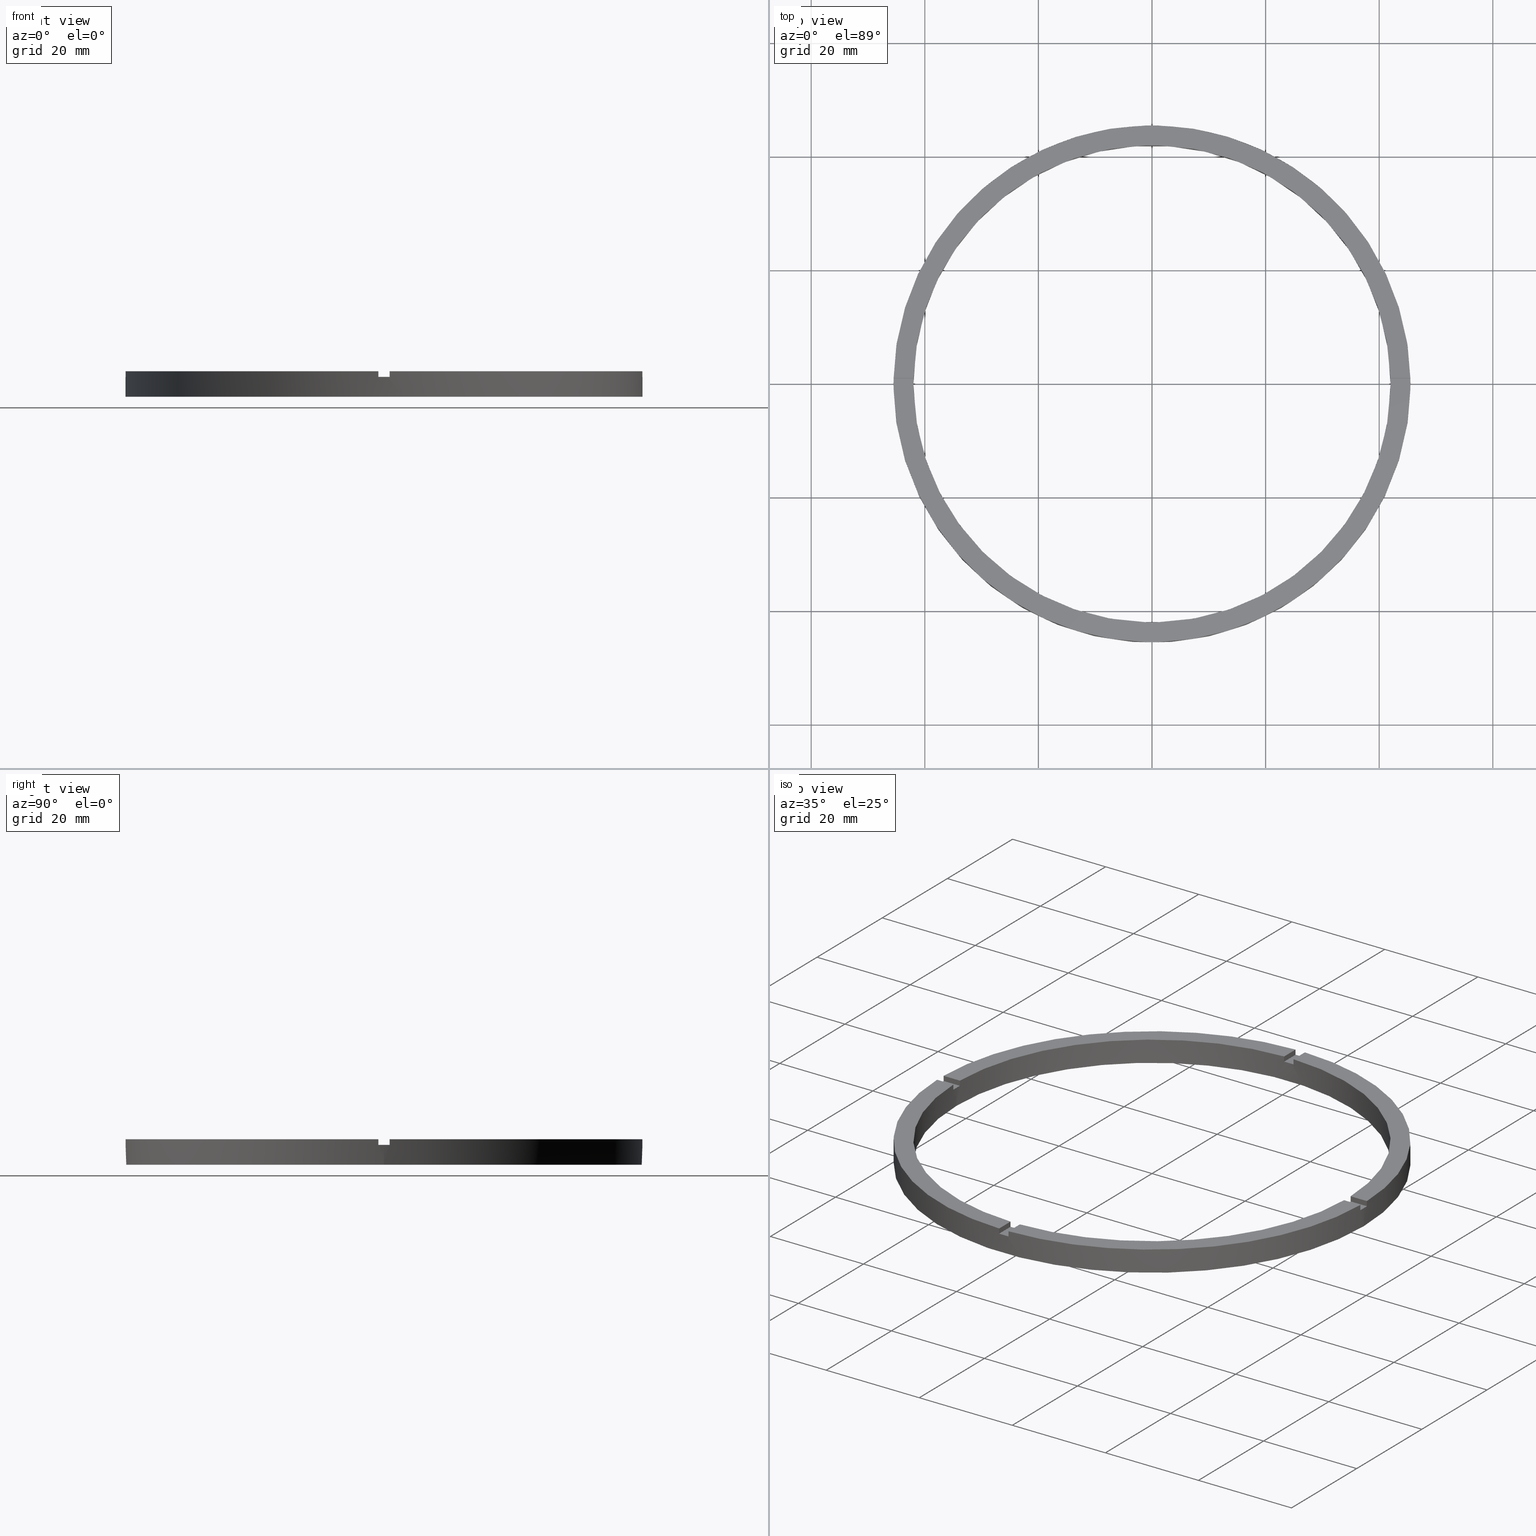
[diagram: canonical four-view strip — front | top / right | iso, engineering-drawing reading convention]
A machine part, canonical four-view strip (front | top / right | iso — engineering-drawing reading convention). The complete STEP part file that produces these views, byte-faithful:
ISO-10303-21;
HEADER;
FILE_DESCRIPTION (( 'STEP AP203' ),
    '1' );
FILE_NAME ('514186.step',
    '2024-12-26T02:45:58',
    ( 'MSI' ),
    ( '' ),
    'SwSTEP 2.0',
    'SolidWorks 2020',
    '' );
FILE_SCHEMA (( 'CONFIG_CONTROL_DESIGN' ));
ENDSEC;

DATA;
#1 = CYLINDRICAL_SURFACE ( 'NONE', #613, 45.50000000000000000 ) ;
#2 = LINE ( 'NONE', #631, #255 ) ;
#3 = LINE ( 'NONE', #134, #529 ) ;
#4 = LINE ( 'NONE', #275, #259 ) ;
#5 = DIRECTION ( 'NONE',  ( -0.000000000000000000, -0.000000000000000000, -1.000000000000000000 ) ) ;
#6 = CARTESIAN_POINT ( 'NONE',  ( 0.000000000000000000, 0.000000000000000000, 3.499999999999999556 ) ) ;
#7 = CIRCLE ( 'NONE', #587, 42.00000000000000000 ) ;
#8 = VECTOR ( 'NONE', #783, 1000.000000000000000 ) ;
#9 = DATE_AND_TIME ( #17, #31 ) ;
#10 = APPLICATION_CONTEXT ( 'configuration controlled 3d designs of mechanical parts and assemblies' ) ;
#11 = CALENDAR_DATE ( 2024, 26, 12 ) ;
#12 = DATE_AND_TIME ( #280, #277 ) ;
#13 = CC_DESIGN_APPROVAL ( #470, ( #728 ) ) ;
#14 = CARTESIAN_POINT ( 'NONE',  ( 0.9999999999999737987, 41.98809355043403713, 4.500000000000000000 ) ) ;
#15 = DIRECTION ( 'NONE',  ( 0.000000000000000000, 0.000000000000000000, 1.000000000000000000 ) ) ;
#16 = AXIS2_PLACEMENT_3D ( 'NONE', #625, #29, #82 ) ;
#17 = CALENDAR_DATE ( 2024, 26, 12 ) ;
#18 = PERSON_AND_ORGANIZATION ( #532, #561 ) ;
#19 = AXIS2_PLACEMENT_3D ( 'NONE', #21, #73, #758 ) ;
#20 = DIRECTION ( 'NONE',  ( -0.000000000000000000, -0.000000000000000000, -1.000000000000000000 ) ) ;
#21 = CARTESIAN_POINT ( 'NONE',  ( 0.000000000000000000, 0.000000000000000000, 3.499999999999999556 ) ) ;
#22 = CARTESIAN_POINT ( 'NONE',  ( 41.98809355043403713, 0.9999999999998436806, 4.500000000000000000 ) ) ;
#23 = EDGE_CURVE ( 'NONE', #650, #669, #362, .T. ) ;
#24 = CARTESIAN_POINT ( 'NONE',  ( 0.000000000000000000, 0.000000000000000000, 4.500000000000000000 ) ) ;
#25 = APPROVAL_PERSON_ORGANIZATION ( #544, #132, #204 ) ;
#26 = COORDINATED_UNIVERSAL_TIME_OFFSET ( 8, 0, .AHEAD. ) ;
#27 = ADVANCED_FACE ( 'NONE', ( #358 ), #107, .T. ) ;
#28 = AXIS2_PLACEMENT_3D ( 'NONE', #336, #99, #93 ) ;
#29 = DIRECTION ( 'NONE',  ( 0.000000000000000000, 0.000000000000000000, 1.000000000000000000 ) ) ;
#30 = DIRECTION ( 'NONE',  ( 1.000000000000000000, 0.000000000000000000, -0.000000000000000000 ) ) ;
#31 = LOCAL_TIME ( 10, 45, 58.00000000000000000, #26 ) ;
#32 = DIRECTION ( 'NONE',  ( -1.000000000000000000, -6.505213034913025371E-17, -0.000000000000000000 ) ) ;
#33 = EDGE_CURVE ( 'NONE', #454, #180, #85, .T. ) ;
#34 = LOCAL_TIME ( 10, 45, 58.00000000000000000, #556 ) ;
#35 = ADVANCED_FACE ( 'NONE', ( #641 ), #302, .T. ) ;
#36 = EDGE_CURVE ( 'NONE', #118, #180, #359, .T. ) ;
#37 = PERSON_AND_ORGANIZATION ( #532, #561 ) ;
#38 = APPROVAL_DATE_TIME ( #289, #412 ) ;
#39 = DATE_TIME_ROLE ( 'creation_date' ) ;
#40 = PERSON_AND_ORGANIZATION ( #532, #561 ) ;
#41 = PERSON_AND_ORGANIZATION ( #532, #561 ) ;
#42 = CARTESIAN_POINT ( 'NONE',  ( -45.48900966167541782, -1.000000000000029976, 4.500000000000000000 ) ) ;
#43 = CALENDAR_DATE ( 2024, 26, 12 ) ;
#44 = DIRECTION ( 'NONE',  ( -0.000000000000000000, -0.000000000000000000, -1.000000000000000000 ) ) ;
#45 = SECURITY_CLASSIFICATION ( '', '', #91 ) ;
#46 = DATE_AND_TIME ( #570, #292 ) ;
#47 = DIRECTION ( 'NONE',  ( 1.000000000000000000, 6.505213034913025371E-17, 0.000000000000000000 ) ) ;
#48 = EDGE_CURVE ( 'NONE', #200, #650, #355, .T. ) ;
#49 = PRODUCT_DEFINITION_SHAPE ( 'NONE', 'NONE',  #728 ) ;
#50 = AXIS2_PLACEMENT_3D ( 'NONE', #564, #500, #615 ) ;
#51 = CARTESIAN_POINT ( 'NONE',  ( 0.9999999999999737987, 45.48900966167541782, 4.500000000000000000 ) ) ;
#52 = CARTESIAN_POINT ( 'NONE',  ( 35.49999999999999289, 0.9999999999998432365, 3.499999999999999556 ) ) ;
#53 = CARTESIAN_POINT ( 'NONE',  ( 45.48900966167542492, 0.9999999999998439026, 4.500000000000000000 ) ) ;
#54 = DIRECTION ( 'NONE',  ( 0.000000000000000000, 0.000000000000000000, 1.000000000000000000 ) ) ;
#55 =( GEOMETRIC_REPRESENTATION_CONTEXT ( 3 ) GLOBAL_UNCERTAINTY_ASSIGNED_CONTEXT ( ( #368 ) ) GLOBAL_UNIT_ASSIGNED_CONTEXT ( ( #194, #550, #554 ) ) REPRESENTATION_CONTEXT ( 'NONE', 'WORKASPACE' ) );
#56 = CARTESIAN_POINT ( 'NONE',  ( 0.000000000000000000, 0.000000000000000000, 3.499999999999999556 ) ) ;
#57 = LINE ( 'NONE', #403, #301 ) ;
#58 = LINE ( 'NONE', #67, #580 ) ;
#59 = AXIS2_PLACEMENT_3D ( 'NONE', #6, #162, #551 ) ;
#60 = AXIS2_PLACEMENT_3D ( 'NONE', #572, #130, #618 ) ;
#61 = DIRECTION ( 'NONE',  ( 0.000000000000000000, 0.000000000000000000, 1.000000000000000000 ) ) ;
#62 = EDGE_CURVE ( 'NONE', #398, #208, #634, .T. ) ;
#63 = CARTESIAN_POINT ( 'NONE',  ( 0.000000000000000000, 0.000000000000000000, 4.500000000000000000 ) ) ;
#64 = DIRECTION ( 'NONE',  ( 1.000000000000000000, 0.000000000000000000, 0.000000000000000000 ) ) ;
#65 = ORIENTED_EDGE ( 'NONE', *, *, #586, .F. ) ;
#66 = VERTEX_POINT ( 'NONE', #253 ) ;
#67 = CARTESIAN_POINT ( 'NONE',  ( 35.49999999999999289, -1.000000000000156763, 3.499999999999999556 ) ) ;
#68 = ORIENTED_EDGE ( 'NONE', *, *, #747, .F. ) ;
#69 = AXIS2_PLACEMENT_3D ( 'NONE', #606, #662, #735 ) ;
#70 = DIRECTION ( 'NONE',  ( -1.000000000000000000, -2.168404344971008621E-16, 0.000000000000000000 ) ) ;
#71 = CARTESIAN_POINT ( 'NONE',  ( 0.000000000000000000, 0.000000000000000000, 4.500000000000000000 ) ) ;
#72 = EDGE_CURVE ( 'NONE', #453, #444, #346, .T. ) ;
#73 = DIRECTION ( 'NONE',  ( 0.000000000000000000, -0.000000000000000000, 1.000000000000000000 ) ) ;
#74 = ORIENTED_EDGE ( 'NONE', *, *, #541, .T. ) ;
#75 = EDGE_CURVE ( 'NONE', #438, #170, #617, .T. ) ;
#76 = PLANE ( 'NONE',  #771 ) ;
#77 = DIRECTION ( 'NONE',  ( -1.000000000000000000, -2.168404344971008621E-16, 0.000000000000000000 ) ) ;
#78 = CARTESIAN_POINT ( 'NONE',  ( -45.50000000000000000, 0.000000000000000000, 0.000000000000000000 ) ) ;
#79 = CC_DESIGN_APPROVAL ( #132, ( #101 ) ) ;
#80 = ORIENTED_EDGE ( 'NONE', *, *, #762, .T. ) ;
#81 = DIRECTION ( 'NONE',  ( 1.000000000000000000, -0.000000000000000000, 0.000000000000000000 ) ) ;
#82 = DIRECTION ( 'NONE',  ( 1.000000000000000000, 0.000000000000000000, 0.000000000000000000 ) ) ;
#83 = CARTESIAN_POINT ( 'NONE',  ( -42.00000000000000000, 0.000000000000000000, 4.500000000000000000 ) ) ;
#84 = VERTEX_POINT ( 'NONE', #574 ) ;
#85 = LINE ( 'NONE', #569, #104 ) ;
#86 = AXIS2_PLACEMENT_3D ( 'NONE', #24, #508, #671 ) ;
#87 = DATE_TIME_ROLE ( 'classification_date' ) ;
#88 = EDGE_CURVE ( 'NONE', #365, #453, #619, .T. ) ;
#89 = VECTOR ( 'NONE', #425, 1000.000000000000000 ) ;
#90 = DIRECTION ( 'NONE',  ( 0.000000000000000000, 0.000000000000000000, 1.000000000000000000 ) ) ;
#91 = SECURITY_CLASSIFICATION_LEVEL ( 'unclassified' ) ;
#92 = ORIENTED_EDGE ( 'NONE', *, *, #640, .T. ) ;
#93 = DIRECTION ( 'NONE',  ( 1.000000000000000000, 0.000000000000000000, 0.000000000000000000 ) ) ;
#94 = ADVANCED_FACE ( 'NONE', ( #354 ), #266, .T. ) ;
#95 = DIRECTION ( 'NONE',  ( 1.000000000000000000, 6.505213034913025371E-17, 0.000000000000000000 ) ) ;
#96 = EDGE_CURVE ( 'NONE', #197, #200, #630, .T. ) ;
#97 = EDGE_CURVE ( 'NONE', #696, #180, #102, .T. ) ;
#98 = CARTESIAN_POINT ( 'NONE',  ( 0.000000000000000000, 0.000000000000000000, 3.499999999999999556 ) ) ;
#99 = DIRECTION ( 'NONE',  ( 0.000000000000000000, 0.000000000000000000, 1.000000000000000000 ) ) ;
#100 = DIRECTION ( 'NONE',  ( 1.000000000000000000, 0.000000000000000000, 0.000000000000000000 ) ) ;
#101 = PRODUCT_DEFINITION_FORMATION_WITH_SPECIFIED_SOURCE ( '�κ�', '', #295, .NOT_KNOWN. ) ;
#102 = LINE ( 'NONE', #600, #356 ) ;
#103 = EDGE_CURVE ( 'NONE', #739, #595, #638, .T. ) ;
#104 = VECTOR ( 'NONE', #247, 1000.000000000000000 ) ;
#105 = AXIS2_PLACEMENT_3D ( 'NONE', #192, #287, #226 ) ;
#106 = CARTESIAN_POINT ( 'NONE',  ( 0.9999999999998409050, -35.50000000000017764, 3.499999999999999556 ) ) ;
#107 = PLANE ( 'NONE',  #596 ) ;
#108 = LINE ( 'NONE', #592, #258 ) ;
#109 = DIRECTION ( 'NONE',  ( 2.168404344971008621E-16, -1.000000000000000000, 0.000000000000000000 ) ) ;
#110 = ORIENTED_EDGE ( 'NONE', *, *, #23, .F. ) ;
#111 = ORIENTED_EDGE ( 'NONE', *, *, #36, .T. ) ;
#112 = AXIS2_PLACEMENT_3D ( 'NONE', #553, #661, #243 ) ;
#113 = VERTEX_POINT ( 'NONE', #605 ) ;
#114 = DIRECTION ( 'NONE',  ( 1.000000000000000000, 0.000000000000000000, 0.000000000000000000 ) ) ;
#115 = ORIENTED_EDGE ( 'NONE', *, *, #639, .F. ) ;
#116 = ORIENTED_EDGE ( 'NONE', *, *, #160, .F. ) ;
#117 = AXIS2_PLACEMENT_3D ( 'NONE', #154, #331, #64 ) ;
#118 = VERTEX_POINT ( 'NONE', #53 ) ;
#119 = ORIENTED_EDGE ( 'NONE', *, *, #501, .T. ) ;
#120 = ORIENTED_EDGE ( 'NONE', *, *, #324, .T. ) ;
#121 = ORIENTED_EDGE ( 'NONE', *, *, #385, .T. ) ;
#122 = DIRECTION ( 'NONE',  ( 1.000000000000000000, 0.000000000000000000, 0.000000000000000000 ) ) ;
#123 = ORIENTED_EDGE ( 'NONE', *, *, #603, .F. ) ;
#124 = ORIENTED_EDGE ( 'NONE', *, *, #48, .F. ) ;
#125 = ORIENTED_EDGE ( 'NONE', *, *, #666, .T. ) ;
#126 = CARTESIAN_POINT ( 'NONE',  ( -1.000000000000026201, 45.48900966167541782, 3.499999999999999556 ) ) ;
#127 = DIRECTION ( 'NONE',  ( -1.301042606982605074E-16, 1.000000000000000000, 0.000000000000000000 ) ) ;
#128 = CARTESIAN_POINT ( 'NONE',  ( 45.50000000000000000, 5.572142936120457130E-15, 3.499999999999999556 ) ) ;
#129 = MANIFOLD_SOLID_BREP ( '�г�-����1', #217 ) ;
#130 = DIRECTION ( 'NONE',  ( 0.000000000000000000, 0.000000000000000000, 1.000000000000000000 ) ) ;
#131 = CARTESIAN_POINT ( 'NONE',  ( 0.9999999999999737987, 41.98809355043403713, 3.499999999999999556 ) ) ;
#132 = APPROVAL ( #764, 'δָ��' ) ;
#133 = ORIENTED_EDGE ( 'NONE', *, *, #576, .T. ) ;
#134 = CARTESIAN_POINT ( 'NONE',  ( 45.48900966167541782, -1.000000000000156097, 4.500000000000000000 ) ) ;
#135 = ORIENTED_EDGE ( 'NONE', *, *, #97, .F. ) ;
#136 = AXIS2_PLACEMENT_3D ( 'NONE', #670, #750, #409 ) ;
#137 = ORIENTED_EDGE ( 'NONE', *, *, #608, .T. ) ;
#138 = CARTESIAN_POINT ( 'NONE',  ( 0.9999999999998421263, -45.48900966167542492, 4.500000000000000000 ) ) ;
#139 = AXIS2_PLACEMENT_3D ( 'NONE', #238, #497, #298 ) ;
#140 = DIRECTION ( 'NONE',  ( -1.301042606982605074E-16, 1.000000000000000000, -0.000000000000000000 ) ) ;
#141 = ORIENTED_EDGE ( 'NONE', *, *, #174, .T. ) ;
#142 = CARTESIAN_POINT ( 'NONE',  ( 0.9999999999998409050, -35.50000000000017764, 3.499999999999999556 ) ) ;
#143 = CARTESIAN_POINT ( 'NONE',  ( -45.48900966167541782, 0.9999999999999701350, 4.500000000000000000 ) ) ;
#144 = ORIENTED_EDGE ( 'NONE', *, *, #502, .F. ) ;
#145 = ADVANCED_FACE ( 'NONE', ( #633 ), #225, .T. ) ;
#146 = ORIENTED_EDGE ( 'NONE', *, *, #557, .T. ) ;
#147 = ORIENTED_EDGE ( 'NONE', *, *, #501, .F. ) ;
#148 = EDGE_LOOP ( 'NONE', ( #402, #147, #494, #347, #177, #375, #224, #419, #759, #726, #196, #137 ) ) ;
#149 = AXIS2_PLACEMENT_3D ( 'NONE', #511, #321, #518 ) ;
#150 = DIRECTION ( 'NONE',  ( 0.000000000000000000, 0.000000000000000000, 1.000000000000000000 ) ) ;
#151 = EDGE_CURVE ( 'NONE', #398, #453, #108, .T. ) ;
#152 = ORIENTED_EDGE ( 'NONE', *, *, #509, .T. ) ;
#153 = EDGE_CURVE ( 'NONE', #431, #172, #3, .T. ) ;
#154 = CARTESIAN_POINT ( 'NONE',  ( 0.000000000000000000, 0.000000000000000000, 0.000000000000000000 ) ) ;
#155 = VERTEX_POINT ( 'NONE', #707 ) ;
#156 = EDGE_LOOP ( 'NONE', ( #74, #141, #648, #609 ) ) ;
#157 = CARTESIAN_POINT ( 'NONE',  ( 0.000000000000000000, 0.000000000000000000, 4.500000000000000000 ) ) ;
#158 = DIRECTION ( 'NONE',  ( -0.000000000000000000, -0.000000000000000000, -1.000000000000000000 ) ) ;
#159 = CARTESIAN_POINT ( 'NONE',  ( 0.000000000000000000, 0.000000000000000000, 4.500000000000000000 ) ) ;
#160 = EDGE_CURVE ( 'NONE', #170, #172, #257, .T. ) ;
#161 = EDGE_CURVE ( 'NONE', #193, #155, #7, .T. ) ;
#162 = DIRECTION ( 'NONE',  ( -0.000000000000000000, 0.000000000000000000, 1.000000000000000000 ) ) ;
#163 = CIRCLE ( 'NONE', #117, 42.00000000000000000 ) ;
#164 = CYLINDRICAL_SURFACE ( 'NONE', #627, 45.50000000000000000 ) ;
#165 = ORIENTED_EDGE ( 'NONE', *, *, #603, .T. ) ;
#166 = LINE ( 'NONE', #565, #430 ) ;
#167 = ORIENTED_EDGE ( 'NONE', *, *, #384, .F. ) ;
#168 = CIRCLE ( 'NONE', #269, 42.00000000000000000 ) ;
#169 = DIRECTION ( 'NONE',  ( 1.000000000000000000, 2.168404344971008621E-16, 0.000000000000000000 ) ) ;
#170 = VERTEX_POINT ( 'NONE', #401 ) ;
#171 = LINE ( 'NONE', #22, #734 ) ;
#172 = VERTEX_POINT ( 'NONE', #545 ) ;
#173 = VECTOR ( 'NONE', #721, 1000.000000000000000 ) ;
#174 = EDGE_CURVE ( 'NONE', #365, #380, #530, .T. ) ;
#175 = ORIENTED_EDGE ( 'NONE', *, *, #629, .T. ) ;
#176 = CARTESIAN_POINT ( 'NONE',  ( -35.50000000000018474, -1.000000000000027978, 3.499999999999999556 ) ) ;
#177 = ORIENTED_EDGE ( 'NONE', *, *, #205, .T. ) ;
#178 = VECTOR ( 'NONE', #366, 1000.000000000000000 ) ;
#179 = ORIENTED_EDGE ( 'NONE', *, *, #492, .F. ) ;
#180 = VERTEX_POINT ( 'NONE', #51 ) ;
#181 = ORIENTED_EDGE ( 'NONE', *, *, #351, .T. ) ;
#182 = EDGE_LOOP ( 'NONE', ( #496, #450, #749, #471, #429, #342, #761, #213, #220, #152, #719, #167 ) ) ;
#183 = LINE ( 'NONE', #312, #178 ) ;
#184 = VERTEX_POINT ( 'NONE', #290 ) ;
#185 = CARTESIAN_POINT ( 'NONE',  ( 41.98809355043403713, 0.9999999999998436806, 4.500000000000000000 ) ) ;
#186 = ORIENTED_EDGE ( 'NONE', *, *, #576, .F. ) ;
#187 = ORIENTED_EDGE ( 'NONE', *, *, #747, .T. ) ;
#188 = ORIENTED_EDGE ( 'NONE', *, *, #88, .F. ) ;
#189 = CARTESIAN_POINT ( 'NONE',  ( 0.000000000000000000, 0.000000000000000000, 0.000000000000000000 ) ) ;
#190 = ORIENTED_EDGE ( 'NONE', *, *, #350, .F. ) ;
#191 = LINE ( 'NONE', #394, #723 ) ;
#192 = CARTESIAN_POINT ( 'NONE',  ( 0.000000000000000000, 0.000000000000000000, 0.000000000000000000 ) ) ;
#193 = VERTEX_POINT ( 'NONE', #481 ) ;
#194 =( LENGTH_UNIT ( ) NAMED_UNIT ( * ) SI_UNIT ( .MILLI., .METRE. ) );
#195 = LINE ( 'NONE', #83, #173 ) ;
#196 = ORIENTED_EDGE ( 'NONE', *, *, #218, .T. ) ;
#197 = VERTEX_POINT ( 'NONE', #42 ) ;
#198 = FACE_OUTER_BOUND ( 'NONE', #414, .T. ) ;
#199 = ORIENTED_EDGE ( 'NONE', *, *, #273, .F. ) ;
#200 = VERTEX_POINT ( 'NONE', #656 ) ;
#201 = FACE_OUTER_BOUND ( 'NONE', #148, .T. ) ;
#202 = CARTESIAN_POINT ( 'NONE',  ( 0.000000000000000000, 0.000000000000000000, 4.500000000000000000 ) ) ;
#203 = VERTEX_POINT ( 'NONE', #715 ) ;
#204 = APPROVAL_ROLE ( '' ) ;
#205 = EDGE_CURVE ( 'NONE', #113, #477, #263, .T. ) ;
#206 = ORIENTED_EDGE ( 'NONE', *, *, #608, .F. ) ;
#207 = DIRECTION ( 'NONE',  ( 1.000000000000000000, 0.000000000000000000, 0.000000000000000000 ) ) ;
#208 = VERTEX_POINT ( 'NONE', #325 ) ;
#209 = ORIENTED_EDGE ( 'NONE', *, *, #96, .F. ) ;
#210 = ORIENTED_EDGE ( 'NONE', *, *, #369, .T. ) ;
#211 = ORIENTED_EDGE ( 'NONE', *, *, #408, .T. ) ;
#212 = PLANE ( 'NONE',  #599 ) ;
#213 = ORIENTED_EDGE ( 'NONE', *, *, #88, .T. ) ;
#214 = ORIENTED_EDGE ( 'NONE', *, *, #408, .F. ) ;
#215 = PLANE ( 'NONE',  #660 ) ;
#216 = DIRECTION ( 'NONE',  ( 1.000000000000000000, 1.301042606982605074E-16, 0.000000000000000000 ) ) ;
#217 = CLOSED_SHELL ( 'NONE', ( #235, #323, #27, #573, #770, #145, #348, #646, #268, #678, #391, #94, #343, #602, #293, #474, #427, #35, #581, #316, #531 ) ) ;
#218 = EDGE_CURVE ( 'NONE', #667, #729, #4, .T. ) ;
#219 = ORIENTED_EDGE ( 'NONE', *, *, #492, .T. ) ;
#220 = ORIENTED_EDGE ( 'NONE', *, *, #151, .F. ) ;
#221 = DIRECTION ( 'NONE',  ( 0.000000000000000000, 1.000000000000000000, 0.000000000000000000 ) ) ;
#222 = ORIENTED_EDGE ( 'NONE', *, *, #657, .T. ) ;
#223 = VERTEX_POINT ( 'NONE', #441 ) ;
#224 = ORIENTED_EDGE ( 'NONE', *, *, #502, .T. ) ;
#225 = PLANE ( 'NONE',  #264 ) ;
#226 = DIRECTION ( 'NONE',  ( 1.000000000000000000, 0.000000000000000000, -0.000000000000000000 ) ) ;
#227 = AXIS2_PLACEMENT_3D ( 'NONE', #281, #584, #100 ) ;
#228 = VECTOR ( 'NONE', #44, 1000.000000000000000 ) ;
#229 = AXIS2_PLACEMENT_3D ( 'NONE', #361, #256, #510 ) ;
#230 = DIRECTION ( 'NONE',  ( 1.000000000000000000, 0.000000000000000000, -0.000000000000000000 ) ) ;
#231 = FACE_OUTER_BOUND ( 'NONE', #468, .T. ) ;
#232 = FACE_OUTER_BOUND ( 'NONE', #491, .T. ) ;
#233 = CYLINDRICAL_SURFACE ( 'NONE', #390, 42.00000000000000000 ) ;
#234 = CARTESIAN_POINT ( 'NONE',  ( 0.000000000000000000, 0.000000000000000000, 3.499999999999999556 ) ) ;
#235 = ADVANCED_FACE ( 'NONE', ( #538 ), #774, .F. ) ;
#236 = AXIS2_PLACEMENT_3D ( 'NONE', #566, #765, #30 ) ;
#237 = CIRCLE ( 'NONE', #59, 42.00000000000000000 ) ;
#238 = CARTESIAN_POINT ( 'NONE',  ( 0.000000000000000000, 0.000000000000000000, 3.499999999999999556 ) ) ;
#239 = PLANE ( 'NONE',  #684 ) ;
#240 = VECTOR ( 'NONE', #158, 1000.000000000000000 ) ;
#241 = CARTESIAN_POINT ( 'NONE',  ( 45.48900966167542492, 0.9999999999998439026, 3.499999999999999556 ) ) ;
#242 = CIRCLE ( 'NONE', #300, 42.00000000000000000 ) ;
#243 = DIRECTION ( 'NONE',  ( 1.000000000000000000, 0.000000000000000000, -0.000000000000000000 ) ) ;
#244 = CARTESIAN_POINT ( 'NONE',  ( 0.9999999999998416822, -41.98809355043403713, 3.499999999999999556 ) ) ;
#245 = FACE_BOUND ( 'NONE', #705, .T. ) ;
#246 = FACE_OUTER_BOUND ( 'NONE', #410, .T. ) ;
#247 = DIRECTION ( 'NONE',  ( 0.000000000000000000, 0.000000000000000000, 1.000000000000000000 ) ) ;
#248 = CARTESIAN_POINT ( 'NONE',  ( -45.50000000000000000, 0.000000000000000000, 3.499999999999999556 ) ) ;
#249 = FACE_OUTER_BOUND ( 'NONE', #752, .T. ) ;
#250 = CIRCLE ( 'NONE', #741, 45.50000000000000000 ) ;
#251 = EDGE_CURVE ( 'NONE', #84, #738, #237, .T. ) ;
#252 = LINE ( 'NONE', #773, #772 ) ;
#253 = CARTESIAN_POINT ( 'NONE',  ( -1.000000000000026201, 45.48900966167541782, 4.500000000000000000 ) ) ;
#254 = CARTESIAN_POINT ( 'NONE',  ( -35.50000000000018474, -1.000000000000027978, 3.499999999999999556 ) ) ;
#255 = VECTOR ( 'NONE', #279, 1000.000000000000000 ) ;
#256 = DIRECTION ( 'NONE',  ( -1.000000000000000000, -1.301042606982605074E-16, 0.000000000000000000 ) ) ;
#257 = LINE ( 'NONE', #692, #535 ) ;
#258 = VECTOR ( 'NONE', #690, 1000.000000000000000 ) ;
#259 = VECTOR ( 'NONE', #376, 1000.000000000000000 ) ;
#260 = CC_DESIGN_PERSON_AND_ORGANIZATION_ASSIGNMENT ( #285, #332, ( #101 ) ) ;
#261 = CARTESIAN_POINT ( 'NONE',  ( 41.98809355043403002, -1.000000000000156319, 4.500000000000000000 ) ) ;
#262 = CARTESIAN_POINT ( 'NONE',  ( 42.00000000000000000, 5.143516556418883322E-15, 0.000000000000000000 ) ) ;
#263 = LINE ( 'NONE', #138, #533 ) ;
#264 = AXIS2_PLACEMENT_3D ( 'NONE', #537, #393, #230 ) ;
#265 = APPROVAL_PERSON_ORGANIZATION ( #37, #412, #320 ) ;
#266 = PLANE ( 'NONE',  #112 ) ;
#267 = LOCAL_TIME ( 10, 45, 58.00000000000000000, #540 ) ;
#268 = ADVANCED_FACE ( 'NONE', ( #768 ), #233, .F. ) ;
#269 = AXIS2_PLACEMENT_3D ( 'NONE', #71, #624, #411 ) ;
#270 = CARTESIAN_POINT ( 'NONE',  ( 45.48900966167541782, -1.000000000000156097, 3.499999999999999556 ) ) ;
#271 = DIRECTION ( 'NONE',  ( -0.000000000000000000, -0.000000000000000000, -1.000000000000000000 ) ) ;
#272 = CARTESIAN_POINT ( 'NONE',  ( -45.48900966167541782, 0.9999999999999701350, 4.500000000000000000 ) ) ;
#273 = EDGE_CURVE ( 'NONE', #477, #738, #503, .T. ) ;
#274 = DIRECTION ( 'NONE',  ( -1.000000000000000000, -6.505213034913025371E-17, -0.000000000000000000 ) ) ;
#275 = CARTESIAN_POINT ( 'NONE',  ( -45.50000000000000000, 0.000000000000000000, 4.500000000000000000 ) ) ;
#276 = DIRECTION ( 'NONE',  ( -1.000000000000000000, -6.505213034913025371E-17, 0.000000000000000000 ) ) ;
#277 = LOCAL_TIME ( 10, 45, 58.00000000000000000, #542 ) ;
#278 = APPROVAL_ROLE ( '' ) ;
#279 = DIRECTION ( 'NONE',  ( -0.000000000000000000, -0.000000000000000000, -1.000000000000000000 ) ) ;
#280 = CALENDAR_DATE ( 2024, 26, 12 ) ;
#281 = CARTESIAN_POINT ( 'NONE',  ( 0.000000000000000000, 0.000000000000000000, 3.499999999999999556 ) ) ;
#282 = DIRECTION ( 'NONE',  ( 1.000000000000000000, 0.000000000000000000, 0.000000000000000000 ) ) ;
#283 = EDGE_CURVE ( 'NONE', #66, #688, #776, .T. ) ;
#284 = DIRECTION ( 'NONE',  ( 1.000000000000000000, 0.000000000000000000, 0.000000000000000000 ) ) ;
#285 = PERSON_AND_ORGANIZATION ( #532, #561 ) ;
#286 = DIRECTION ( 'NONE',  ( 0.000000000000000000, 0.000000000000000000, 1.000000000000000000 ) ) ;
#287 = DIRECTION ( 'NONE',  ( 0.000000000000000000, 0.000000000000000000, 1.000000000000000000 ) ) ;
#288 = CC_DESIGN_DATE_AND_TIME_ASSIGNMENT ( #562, #87, ( #45 ) ) ;
#289 = DATE_AND_TIME ( #43, #267 ) ;
#290 = CARTESIAN_POINT ( 'NONE',  ( -41.98809355043403713, -1.000000000000029310, 3.499999999999999556 ) ) ;
#291 = AXIS2_PLACEMENT_3D ( 'NONE', #379, #635, #691 ) ;
#292 = LOCAL_TIME ( 10, 45, 58.00000000000000000, #296 ) ;
#293 = ADVANCED_FACE ( 'NONE', ( #249 ), #239, .T. ) ;
#294 = DIRECTION ( 'NONE',  ( -0.000000000000000000, 0.000000000000000000, 1.000000000000000000 ) ) ;
#295 = PRODUCT ( '514186', '514186', '', ( #681 ) ) ;
#296 = COORDINATED_UNIVERSAL_TIME_OFFSET ( 8, 0, .AHEAD. ) ;
#297 = DESIGN_CONTEXT ( 'detailed design', #328, 'design' ) ;
#298 = DIRECTION ( 'NONE',  ( 1.000000000000000000, 0.000000000000000000, 0.000000000000000000 ) ) ;
#299 = APPROVAL_PERSON_ORGANIZATION ( #41, #470, #278 ) ;
#300 = AXIS2_PLACEMENT_3D ( 'NONE', #56, #465, #645 ) ;
#301 = VECTOR ( 'NONE', #315, 1000.000000000000000 ) ;
#302 = PLANE ( 'NONE',  #50 ) ;
#303 = CARTESIAN_POINT ( 'NONE',  ( 45.50000000000000000, 5.572142936120457130E-15, 0.000000000000000000 ) ) ;
#304 = LINE ( 'NONE', #254, #577 ) ;
#305 = CARTESIAN_POINT ( 'NONE',  ( -1.000000000000159206, -35.50000000000017764, 4.500000000000000000 ) ) ;
#306 = VECTOR ( 'NONE', #742, 1000.000000000000000 ) ;
#307 = CIRCLE ( 'NONE', #139, 42.00000000000000000 ) ;
#308 = PLANE ( 'NONE',  #421 ) ;
#309 = PLANE ( 'NONE',  #236 ) ;
#310 = CARTESIAN_POINT ( 'NONE',  ( -35.50000000000018474, 0.9999999999999720224, 4.500000000000000000 ) ) ;
#311 = CARTESIAN_POINT ( 'NONE',  ( 0.000000000000000000, 0.000000000000000000, 4.500000000000000000 ) ) ;
#312 = CARTESIAN_POINT ( 'NONE',  ( -1.000000000000026201, 35.50000000000000000, 4.500000000000000000 ) ) ;
#313 = PLANE ( 'NONE',  #229 ) ;
#314 = DIRECTION ( 'NONE',  ( 1.000000000000000000, 0.000000000000000000, -0.000000000000000000 ) ) ;
#315 = DIRECTION ( 'NONE',  ( -0.000000000000000000, -0.000000000000000000, -1.000000000000000000 ) ) ;
#316 = ADVANCED_FACE ( 'NONE', ( #231 ), #318, .F. ) ;
#317 = ORIENTED_EDGE ( 'NONE', *, *, #33, .F. ) ;
#318 = PLANE ( 'NONE',  #479 ) ;
#319 = CC_DESIGN_PERSON_AND_ORGANIZATION_ASSIGNMENT ( #40, #685, ( #295 ) ) ;
#320 = APPROVAL_ROLE ( '' ) ;
#322 = DIRECTION ( 'NONE',  ( -2.168404344971008621E-16, 1.000000000000000000, 0.000000000000000000 ) ) ;
#321 = DIRECTION ( 'NONE',  ( 0.000000000000000000, -0.000000000000000000, 1.000000000000000000 ) ) ;
#323 = ADVANCED_FACE ( 'NONE', ( #523 ), #1, .T. ) ;
#324 = EDGE_CURVE ( 'NONE', #208, #444, #506, .T. ) ;
#325 = CARTESIAN_POINT ( 'NONE',  ( -45.48900966167541782, 0.9999999999999701350, 3.499999999999999556 ) ) ;
#326 = CARTESIAN_POINT ( 'NONE',  ( 0.000000000000000000, 0.000000000000000000, 3.499999999999999556 ) ) ;
#327 = ORIENTED_EDGE ( 'NONE', *, *, #75, .T. ) ;
#328 = APPLICATION_CONTEXT ( 'configuration controlled 3d designs of mechanical parts and assemblies' ) ;
#329 = CARTESIAN_POINT ( 'NONE',  ( 35.49999999999999289, 0.9999999999998432365, 4.500000000000000000 ) ) ;
#330 = DIRECTION ( 'NONE',  ( -0.000000000000000000, -0.000000000000000000, -1.000000000000000000 ) ) ;
#331 = DIRECTION ( 'NONE',  ( 0.000000000000000000, 0.000000000000000000, 1.000000000000000000 ) ) ;
#332 = PERSON_AND_ORGANIZATION_ROLE ( 'creator' ) ;
#333 = EDGE_CURVE ( 'NONE', #454, #688, #504, .T. ) ;
#334 = CARTESIAN_POINT ( 'NONE',  ( -41.98809355043403713, 0.9999999999999708011, 4.500000000000000000 ) ) ;
#335 = ORIENTED_EDGE ( 'NONE', *, *, #161, .F. ) ;
#336 = CARTESIAN_POINT ( 'NONE',  ( 0.000000000000000000, 0.000000000000000000, 3.499999999999999556 ) ) ;
#337 = CARTESIAN_POINT ( 'NONE',  ( -1.000000000000026201, 41.98809355043403713, 4.500000000000000000 ) ) ;
#338 = DIRECTION ( 'NONE',  ( 1.000000000000000000, 0.000000000000000000, 0.000000000000000000 ) ) ;
#339 = CARTESIAN_POINT ( 'NONE',  ( 0.000000000000000000, 0.000000000000000000, 3.499999999999999556 ) ) ;
#340 = EDGE_CURVE ( 'NONE', #739, #736, #252, .T. ) ;
#341 = EDGE_CURVE ( 'NONE', #480, #738, #780, .T. ) ;
#342 = ORIENTED_EDGE ( 'NONE', *, *, #639, .T. ) ;
#343 = ADVANCED_FACE ( 'NONE', ( #232 ), #76, .F. ) ;
#344 = CARTESIAN_POINT ( 'NONE',  ( -1.000000000000026201, 35.50000000000000000, 3.499999999999999556 ) ) ;
#345 = EDGE_LOOP ( 'NONE', ( #642, #146, #115, #372 ) ) ;
#346 = LINE ( 'NONE', #310, #637 ) ;
#347 = ORIENTED_EDGE ( 'NONE', *, *, #351, .F. ) ;
#348 = ADVANCED_FACE ( 'NONE', ( #524, #245 ), #457, .F. ) ;
#349 = DIRECTION ( 'NONE',  ( -0.000000000000000000, -0.000000000000000000, -1.000000000000000000 ) ) ;
#350 = EDGE_CURVE ( 'NONE', #644, #184, #242, .T. ) ;
#351 = EDGE_CURVE ( 'NONE', #113, #172, #514, .T. ) ;
#352 = DIRECTION ( 'NONE',  ( 1.000000000000000000, 0.000000000000000000, -0.000000000000000000 ) ) ;
#353 = CARTESIAN_POINT ( 'NONE',  ( -41.98809355043403713, -1.000000000000029310, 4.500000000000000000 ) ) ;
#354 = FACE_OUTER_BOUND ( 'NONE', #598, .T. ) ;
#355 = CIRCLE ( 'NONE', #652, 42.00000000000000000 ) ;
#356 = VECTOR ( 'NONE', #221, 1000.000000000000000 ) ;
#357 = DIRECTION ( 'NONE',  ( 0.000000000000000000, 0.000000000000000000, 1.000000000000000000 ) ) ;
#358 = FACE_OUTER_BOUND ( 'NONE', #451, .T. ) ;
#359 = CIRCLE ( 'NONE', #136, 45.50000000000000000 ) ;
#360 = ORIENTED_EDGE ( 'NONE', *, *, #96, .T. ) ;
#361 = CARTESIAN_POINT ( 'NONE',  ( -1.000000000000159206, -35.50000000000017764, 3.499999999999999556 ) ) ;
#362 = LINE ( 'NONE', #305, #621 ) ;
#363 = DIRECTION ( 'NONE',  ( -0.000000000000000000, -0.000000000000000000, -1.000000000000000000 ) ) ;
#364 = AXIS2_PLACEMENT_3D ( 'NONE', #449, #766, #207 ) ;
#365 = VERTEX_POINT ( 'NONE', #651 ) ;
#366 = DIRECTION ( 'NONE',  ( -0.000000000000000000, -1.000000000000000000, -0.000000000000000000 ) ) ;
#367 = ORIENTED_EDGE ( 'NONE', *, *, #657, .F. ) ;
#368 = UNCERTAINTY_MEASURE_WITH_UNIT (LENGTH_MEASURE( 1.000000000000000082E-05 ), #194, 'distance_accuracy_value', 'NONE');
#369 = EDGE_CURVE ( 'NONE', #716, #477, #250, .T. ) ;
#370 = ORIENTED_EDGE ( 'NONE', *, *, #341, .F. ) ;
#371 = ORIENTED_EDGE ( 'NONE', *, *, #541, .F. ) ;
#372 = ORIENTED_EDGE ( 'NONE', *, *, #586, .T. ) ;
#373 = ORIENTED_EDGE ( 'NONE', *, *, #103, .T. ) ;
#374 = ORIENTED_EDGE ( 'NONE', *, *, #333, .F. ) ;
#375 = ORIENTED_EDGE ( 'NONE', *, *, #369, .F. ) ;
#376 = DIRECTION ( 'NONE',  ( -0.000000000000000000, -0.000000000000000000, -1.000000000000000000 ) ) ;
#377 = ORIENTED_EDGE ( 'NONE', *, *, #418, .T. ) ;
#378 = PLANE ( 'NONE',  #19 ) ;
#379 = CARTESIAN_POINT ( 'NONE',  ( 0.000000000000000000, 0.000000000000000000, 3.499999999999999556 ) ) ;
#380 = VERTEX_POINT ( 'NONE', #779 ) ;
#381 = APPROVAL_STATUS ( 'not_yet_approved' ) ;
#382 = ORIENTED_EDGE ( 'NONE', *, *, #416, .F. ) ;
#383 = CARTESIAN_POINT ( 'NONE',  ( -41.98809355043403713, 0.9999999999999708011, 3.499999999999999556 ) ) ;
#384 = EDGE_CURVE ( 'NONE', #708, #223, #515, .T. ) ;
#385 = EDGE_CURVE ( 'NONE', #667, #203, #781, .T. ) ;
#386 = CARTESIAN_POINT ( 'NONE',  ( 0.9999999999999737987, 45.48900966167541782, 3.499999999999999556 ) ) ;
#387 = CARTESIAN_POINT ( 'NONE',  ( 0.9999999999998416822, -41.98809355043403713, 4.500000000000000000 ) ) ;
#388 = CC_DESIGN_APPROVAL ( #412, ( #45 ) ) ;
#389 = VERTEX_POINT ( 'NONE', #131 ) ;
#390 = AXIS2_PLACEMENT_3D ( 'NONE', #490, #349, #607 ) ;
#391 = ADVANCED_FACE ( 'NONE', ( #246 ), #212, .F. ) ;
#392 = ORIENTED_EDGE ( 'NONE', *, *, #702, .T. ) ;
#393 = DIRECTION ( 'NONE',  ( 0.000000000000000000, 0.000000000000000000, 1.000000000000000000 ) ) ;
#394 = CARTESIAN_POINT ( 'NONE',  ( 42.00000000000000000, 5.143516556418883322E-15, 4.500000000000000000 ) ) ;
#395 = ORIENTED_EDGE ( 'NONE', *, *, #461, .F. ) ;
#396 = DIRECTION ( 'NONE',  ( -0.000000000000000000, 0.000000000000000000, 1.000000000000000000 ) ) ;
#397 = AXIS2_PLACEMENT_3D ( 'NONE', #344, #604, #731 ) ;
#398 = VERTEX_POINT ( 'NONE', #383 ) ;
#399 = ORIENTED_EDGE ( 'NONE', *, *, #664, .T. ) ;
#400 = ORIENTED_EDGE ( 'NONE', *, *, #418, .F. ) ;
#401 = CARTESIAN_POINT ( 'NONE',  ( 41.98809355043403002, -1.000000000000156319, 4.500000000000000000 ) ) ;
#402 = ORIENTED_EDGE ( 'NONE', *, *, #340, .F. ) ;
#403 = CARTESIAN_POINT ( 'NONE',  ( -45.48900966167541782, -1.000000000000029976, 4.500000000000000000 ) ) ;
#404 = CARTESIAN_POINT ( 'NONE',  ( -1.000000000000026201, 45.48900966167541782, 4.500000000000000000 ) ) ;
#405 = AXIS2_PLACEMENT_3D ( 'NONE', #769, #588, #47 ) ;
#406 = ORIENTED_EDGE ( 'NONE', *, *, #153, .F. ) ;
#407 = DIRECTION ( 'NONE',  ( -1.000000000000000000, 0.000000000000000000, 0.000000000000000000 ) ) ;
#408 = EDGE_CURVE ( 'NONE', #118, #709, #782, .T. ) ;
#409 = DIRECTION ( 'NONE',  ( 1.000000000000000000, 0.000000000000000000, 0.000000000000000000 ) ) ;
#410 = EDGE_LOOP ( 'NONE', ( #683, #488, #423, #699 ) ) ;
#411 = DIRECTION ( 'NONE',  ( 1.000000000000000000, 0.000000000000000000, 0.000000000000000000 ) ) ;
#412 = APPROVAL ( #445, 'δָ��' ) ;
#413 = PLANE ( 'NONE',  #397 ) ;
#414 = EDGE_LOOP ( 'NONE', ( #668, #399, #459, #144 ) ) ;
#415 = CARTESIAN_POINT ( 'NONE',  ( -1.000000000000157874, -45.48900966167541782, 3.499999999999999556 ) ) ;
#416 = EDGE_CURVE ( 'NONE', #736, #729, #527, .T. ) ;
#417 = ORIENTED_EDGE ( 'NONE', *, *, #575, .F. ) ;
#418 = EDGE_CURVE ( 'NONE', #118, #595, #2, .T. ) ;
#419 = ORIENTED_EDGE ( 'NONE', *, *, #666, .F. ) ;
#420 = CARTESIAN_POINT ( 'NONE',  ( -42.00000000000000000, 0.000000000000000000, 3.499999999999999556 ) ) ;
#421 = AXIS2_PLACEMENT_3D ( 'NONE', #311, #357, #352 ) ;
#422 = EDGE_LOOP ( 'NONE', ( #116, #711, #179, #181 ) ) ;
#423 = ORIENTED_EDGE ( 'NONE', *, *, #72, .T. ) ;
#424 = CIRCLE ( 'NONE', #571, 42.00000000000000000 ) ;
#425 = DIRECTION ( 'NONE',  ( 0.000000000000000000, 0.000000000000000000, 1.000000000000000000 ) ) ;
#426 = LINE ( 'NONE', #353, #697 ) ;
#427 = ADVANCED_FACE ( 'NONE', ( #505 ), #525, .F. ) ;
#428 = CARTESIAN_POINT ( 'NONE',  ( -1.000000000000026201, 35.50000000000000000, 3.499999999999999556 ) ) ;
#429 = ORIENTED_EDGE ( 'NONE', *, *, #548, .F. ) ;
#430 = VECTOR ( 'NONE', #616, 1000.000000000000000 ) ;
#431 = VERTEX_POINT ( 'NONE', #270 ) ;
#432 = CIRCLE ( 'NONE', #687, 42.00000000000000000 ) ;
#433 = EDGE_LOOP ( 'NONE', ( #110, #124, #209, #125 ) ) ;
#434 = AXIS2_PLACEMENT_3D ( 'NONE', #543, #472, #282 ) ;
#435 = FACE_OUTER_BOUND ( 'NONE', #732, .T. ) ;
#436 = DIRECTION ( 'NONE',  ( -0.000000000000000000, -0.000000000000000000, -1.000000000000000000 ) ) ;
#437 = LINE ( 'NONE', #658, #306 ) ;
#438 = VERTEX_POINT ( 'NONE', #591 ) ;
#439 = LINE ( 'NONE', #744, #694 ) ;
#440 = EDGE_LOOP ( 'NONE', ( #447, #722, #458, #475, #123, #120, #186, #717, #374, #743, #460, #377 ) ) ;
#441 = CARTESIAN_POINT ( 'NONE',  ( -42.00000000000000000, 0.000000000000000000, 0.000000000000000000 ) ) ;
#442 = ORIENTED_EDGE ( 'NONE', *, *, #350, .T. ) ;
#443 = CIRCLE ( 'NONE', #149, 42.00000000000000000 ) ;
#444 = VERTEX_POINT ( 'NONE', #143 ) ;
#445 = APPROVAL_STATUS ( 'not_yet_approved' ) ;
#446 = EDGE_LOOP ( 'NONE', ( #187, #740, #653, #417, #442, #367, #467, #733, #647, #370, #713, #649 ) ) ;
#447 = ORIENTED_EDGE ( 'NONE', *, *, #103, .F. ) ;
#448 = FACE_OUTER_BOUND ( 'NONE', #156, .T. ) ;
#449 = CARTESIAN_POINT ( 'NONE',  ( 0.000000000000000000, 0.000000000000000000, 0.000000000000000000 ) ) ;
#450 = ORIENTED_EDGE ( 'NONE', *, *, #161, .T. ) ;
#451 = EDGE_LOOP ( 'NONE', ( #371, #133, #654, #188 ) ) ;
#452 = LINE ( 'NONE', #487, #730 ) ;
#453 = VERTEX_POINT ( 'NONE', #334 ) ;
#454 = VERTEX_POINT ( 'NONE', #386 ) ;
#455 = DIRECTION ( 'NONE',  ( -6.505213034913025371E-17, 1.000000000000000000, 0.000000000000000000 ) ) ;
#456 = VECTOR ( 'NONE', #54, 1000.000000000000000 ) ;
#457 = PLANE ( 'NONE',  #105 ) ;
#458 = ORIENTED_EDGE ( 'NONE', *, *, #416, .T. ) ;
#459 = ORIENTED_EDGE ( 'NONE', *, *, #23, .T. ) ;
#460 = ORIENTED_EDGE ( 'NONE', *, *, #36, .F. ) ;
#461 = EDGE_CURVE ( 'NONE', #595, #155, #476, .T. ) ;
#462 = FACE_OUTER_BOUND ( 'NONE', #345, .T. ) ;
#463 = VECTOR ( 'NONE', #512, 1000.000000000000000 ) ;
#464 = ORIENTED_EDGE ( 'NONE', *, *, #509, .F. ) ;
#465 = DIRECTION ( 'NONE',  ( 0.000000000000000000, 0.000000000000000000, 1.000000000000000000 ) ) ;
#466 = ORIENTED_EDGE ( 'NONE', *, *, #205, .F. ) ;
#467 = ORIENTED_EDGE ( 'NONE', *, *, #48, .T. ) ;
#468 = EDGE_LOOP ( 'NONE', ( #65, #746, #663, #317 ) ) ;
#469 = DIRECTION ( 'NONE',  ( -0.000000000000000000, -0.000000000000000000, -1.000000000000000000 ) ) ;
#470 = APPROVAL ( #381, 'δָ��' ) ;
#471 = ORIENTED_EDGE ( 'NONE', *, *, #674, .T. ) ;
#472 = DIRECTION ( 'NONE',  ( 0.000000000000000000, 0.000000000000000000, 1.000000000000000000 ) ) ;
#473 = CIRCLE ( 'NONE', #693, 45.50000000000000000 ) ;
#474 = ADVANCED_FACE ( 'NONE', ( #482 ), #215, .F. ) ;
#475 = ORIENTED_EDGE ( 'NONE', *, *, #218, .F. ) ;
#476 = LINE ( 'NONE', #534, #745 ) ;
#477 = VERTEX_POINT ( 'NONE', #593 ) ;
#478 = LINE ( 'NONE', #643, #748 ) ;
#479 = AXIS2_PLACEMENT_3D ( 'NONE', #507, #81, #568 ) ;
#480 = VERTEX_POINT ( 'NONE', #387 ) ;
#481 = CARTESIAN_POINT ( 'NONE',  ( 42.00000000000000000, 5.143516556418883322E-15, 3.499999999999999556 ) ) ;
#482 = FACE_OUTER_BOUND ( 'NONE', #720, .T. ) ;
#483 = ORIENTED_EDGE ( 'NONE', *, *, #251, .F. ) ;
#484 = DIRECTION ( 'NONE',  ( 1.301042606982605074E-16, -1.000000000000000000, 0.000000000000000000 ) ) ;
#485 = ORIENTED_EDGE ( 'NONE', *, *, #62, .T. ) ;
#486 = ORIENTED_EDGE ( 'NONE', *, *, #160, .T. ) ;
#487 = CARTESIAN_POINT ( 'NONE',  ( 0.9999999999999737987, 35.50000000000000000, 3.499999999999999556 ) ) ;
#488 = ORIENTED_EDGE ( 'NONE', *, *, #151, .T. ) ;
#489 = DIRECTION ( 'NONE',  ( 1.000000000000000000, 6.505213034913025371E-17, 0.000000000000000000 ) ) ;
#490 = CARTESIAN_POINT ( 'NONE',  ( 0.000000000000000000, 0.000000000000000000, 4.500000000000000000 ) ) ;
#491 = EDGE_LOOP ( 'NONE', ( #219, #493, #199, #466 ) ) ;
#492 = EDGE_CURVE ( 'NONE', #113, #480, #478, .T. ) ;
#493 = ORIENTED_EDGE ( 'NONE', *, *, #341, .T. ) ;
#494 = ORIENTED_EDGE ( 'NONE', *, *, #153, .T. ) ;
#495 = DIRECTION ( 'NONE',  ( 0.000000000000000000, 0.000000000000000000, 1.000000000000000000 ) ) ;
#496 = ORIENTED_EDGE ( 'NONE', *, *, #526, .F. ) ;
#497 = DIRECTION ( 'NONE',  ( 0.000000000000000000, 0.000000000000000000, 1.000000000000000000 ) ) ;
#498 = DIRECTION ( 'NONE',  ( -1.000000000000000000, 0.000000000000000000, 0.000000000000000000 ) ) ;
#499 = AXIS2_PLACEMENT_3D ( 'NONE', #189, #620, #753 ) ;
#500 = DIRECTION ( 'NONE',  ( 0.000000000000000000, 0.000000000000000000, 1.000000000000000000 ) ) ;
#501 = EDGE_CURVE ( 'NONE', #431, #739, #473, .T. ) ;
#502 = EDGE_CURVE ( 'NONE', #716, #669, #706, .T. ) ;
#503 = LINE ( 'NONE', #106, #521 ) ;
#504 = CIRCLE ( 'NONE', #291, 45.50000000000000000 ) ;
#505 = FACE_OUTER_BOUND ( 'NONE', #757, .T. ) ;
#506 = LINE ( 'NONE', #272, #513 ) ;
#507 = CARTESIAN_POINT ( 'NONE',  ( 0.9999999999999737987, 35.50000000000000000, 3.499999999999999556 ) ) ;
#508 = DIRECTION ( 'NONE',  ( 0.000000000000000000, 0.000000000000000000, 1.000000000000000000 ) ) ;
#509 = EDGE_CURVE ( 'NONE', #398, #644, #424, .T. ) ;
#510 = DIRECTION ( 'NONE',  ( 1.301042606982605074E-16, -1.000000000000000000, 0.000000000000000000 ) ) ;
#511 = CARTESIAN_POINT ( 'NONE',  ( 0.000000000000000000, 0.000000000000000000, 3.499999999999999556 ) ) ;
#512 = DIRECTION ( 'NONE',  ( -0.000000000000000000, -1.000000000000000000, -0.000000000000000000 ) ) ;
#513 = VECTOR ( 'NONE', #585, 1000.000000000000000 ) ;
#514 = CIRCLE ( 'NONE', #536, 45.50000000000000000 ) ;
#515 = CIRCLE ( 'NONE', #434, 42.00000000000000000 ) ;
#516 = DIRECTION ( 'NONE',  ( 1.000000000000000000, 0.000000000000000000, 0.000000000000000000 ) ) ;
#517 = VECTOR ( 'NONE', #274, 1000.000000000000000 ) ;
#518 = DIRECTION ( 'NONE',  ( 1.000000000000000000, 0.000000000000000000, 0.000000000000000000 ) ) ;
#519 = CARTESIAN_POINT ( 'NONE',  ( 0.000000000000000000, 0.000000000000000000, 4.500000000000000000 ) ) ;
#520 = AXIS2_PLACEMENT_3D ( 'NONE', #176, #109, #169 ) ;
#521 = VECTOR ( 'NONE', #725, 1000.000000000000000 ) ;
#522 = PERSON_AND_ORGANIZATION_ROLE ( 'design_supplier' ) ;
#523 = FACE_OUTER_BOUND ( 'NONE', #440, .T. ) ;
#524 = FACE_OUTER_BOUND ( 'NONE', #655, .T. ) ;
#525 = PLANE ( 'NONE',  #405 ) ;
#526 = EDGE_CURVE ( 'NONE', #193, #708, #191, .T. ) ;
#527 = CIRCLE ( 'NONE', #364, 45.50000000000000000 ) ;
#528 = DIRECTION ( 'NONE',  ( 0.000000000000000000, 0.000000000000000000, 1.000000000000000000 ) ) ;
#529 = VECTOR ( 'NONE', #61, 1000.000000000000000 ) ;
#530 = LINE ( 'NONE', #337, #8 ) ;
#531 = ADVANCED_FACE ( 'NONE', ( #462 ), #378, .T. ) ;
#532 = PERSON ( 'δָ��', 'δָ��', 'δָ��', ('δָ��'), ('δָ��'), ('δָ��') ) ;
#533 = VECTOR ( 'NONE', #271, 1000.000000000000000 ) ;
#534 = CARTESIAN_POINT ( 'NONE',  ( 35.49999999999999289, 0.9999999999998432365, 3.499999999999999556 ) ) ;
#535 = VECTOR ( 'NONE', #95, 1000.000000000000000 ) ;
#536 = AXIS2_PLACEMENT_3D ( 'NONE', #539, #150, #594 ) ;
#537 = CARTESIAN_POINT ( 'NONE',  ( 0.000000000000000000, 0.000000000000000000, 4.500000000000000000 ) ) ;
#538 = FACE_OUTER_BOUND ( 'NONE', #446, .T. ) ;
#539 = CARTESIAN_POINT ( 'NONE',  ( 0.000000000000000000, 0.000000000000000000, 4.500000000000000000 ) ) ;
#540 = COORDINATED_UNIVERSAL_TIME_OFFSET ( 8, 0, .AHEAD. ) ;
#541 = EDGE_CURVE ( 'NONE', #66, #365, #183, .T. ) ;
#542 = COORDINATED_UNIVERSAL_TIME_OFFSET ( 8, 0, .AHEAD. ) ;
#543 = CARTESIAN_POINT ( 'NONE',  ( 0.000000000000000000, 0.000000000000000000, 0.000000000000000000 ) ) ;
#544 = PERSON_AND_ORGANIZATION ( #532, #561 ) ;
#545 = CARTESIAN_POINT ( 'NONE',  ( 45.48900966167541782, -1.000000000000156097, 4.500000000000000000 ) ) ;
#546 = PRODUCT_RELATED_PRODUCT_CATEGORY ( 'detail', '', ( #295 ) ) ;
#547 = PERSON_AND_ORGANIZATION ( #532, #561 ) ;
#548 = EDGE_CURVE ( 'NONE', #389, #696, #439, .T. ) ;
#549 = APPROVAL_DATE_TIME ( #46, #470 ) ;
#550 =( NAMED_UNIT ( * ) PLANE_ANGLE_UNIT ( ) SI_UNIT ( $, .RADIAN. ) );
#551 = DIRECTION ( 'NONE',  ( 1.000000000000000000, 0.000000000000000000, 0.000000000000000000 ) ) ;
#552 = DIRECTION ( 'NONE',  ( 1.000000000000000000, 0.000000000000000000, 0.000000000000000000 ) ) ;
#553 = CARTESIAN_POINT ( 'NONE',  ( 0.000000000000000000, 0.000000000000000000, 3.499999999999999556 ) ) ;
#554 =( NAMED_UNIT ( * ) SI_UNIT ( $, .STERADIAN. ) SOLID_ANGLE_UNIT ( ) );
#555 = APPROVAL_DATE_TIME ( #9, #132 ) ;
#556 = COORDINATED_UNIVERSAL_TIME_OFFSET ( 8, 0, .AHEAD. ) ;
#557 = EDGE_CURVE ( 'NONE', #688, #380, #727, .T. ) ;
#558 = CARTESIAN_POINT ( 'NONE',  ( 0.000000000000000000, 0.000000000000000000, 4.500000000000000000 ) ) ;
#559 = PERSON_AND_ORGANIZATION ( #532, #561 ) ;
#560 = PLANE ( 'NONE',  #520 ) ;
#561 = ORGANIZATION ( 'δָ��', 'δָ��', '' ) ;
#562 = DATE_AND_TIME ( #11, #34 ) ;
#563 = AXIS2_PLACEMENT_3D ( 'NONE', #157, #610, #552 ) ;
#564 = CARTESIAN_POINT ( 'NONE',  ( 0.000000000000000000, 0.000000000000000000, 3.499999999999999556 ) ) ;
#565 = CARTESIAN_POINT ( 'NONE',  ( -1.000000000000158318, -41.98809355043403002, 4.500000000000000000 ) ) ;
#566 = CARTESIAN_POINT ( 'NONE',  ( 0.000000000000000000, 0.000000000000000000, 4.500000000000000000 ) ) ;
#567 = SHAPE_DEFINITION_REPRESENTATION ( #49, #665 ) ;
#568 = DIRECTION ( 'NONE',  ( 0.000000000000000000, 0.000000000000000000, -1.000000000000000000 ) ) ;
#569 = CARTESIAN_POINT ( 'NONE',  ( 0.9999999999999737987, 45.48900966167541782, 4.500000000000000000 ) ) ;
#570 = CALENDAR_DATE ( 2024, 26, 12 ) ;
#571 = AXIS2_PLACEMENT_3D ( 'NONE', #98, #286, #338 ) ;
#572 = CARTESIAN_POINT ( 'NONE',  ( 0.000000000000000000, 0.000000000000000000, 3.499999999999999556 ) ) ;
#573 = ADVANCED_FACE ( 'NONE', ( #695 ), #309, .T. ) ;
#574 = CARTESIAN_POINT ( 'NONE',  ( -1.000000000000158318, -41.98809355043403002, 3.499999999999999556 ) ) ;
#575 = EDGE_CURVE ( 'NONE', #644, #223, #195, .T. ) ;
#576 = EDGE_CURVE ( 'NONE', #66, #444, #714, .T. ) ;
#577 = VECTOR ( 'NONE', #677, 1000.000000000000000 ) ;
#578 = DIRECTION ( 'NONE',  ( -1.000000000000000000, 0.000000000000000000, 0.000000000000000000 ) ) ;
#579 = PERSON_AND_ORGANIZATION_ROLE ( 'classification_officer' ) ;
#580 = VECTOR ( 'NONE', #489, 1000.000000000000000 ) ;
#581 = ADVANCED_FACE ( 'NONE', ( #448 ), #413, .F. ) ;
#582 = CC_DESIGN_SECURITY_CLASSIFICATION ( #45, ( #101 ) ) ;
#583 = FACE_OUTER_BOUND ( 'NONE', #422, .T. ) ;
#584 = DIRECTION ( 'NONE',  ( 0.000000000000000000, 0.000000000000000000, 1.000000000000000000 ) ) ;
#585 = DIRECTION ( 'NONE',  ( 0.000000000000000000, 0.000000000000000000, 1.000000000000000000 ) ) ;
#586 = EDGE_CURVE ( 'NONE', #389, #454, #452, .T. ) ;
#587 = AXIS2_PLACEMENT_3D ( 'NONE', #775, #90, #284 ) ;
#588 = DIRECTION ( 'NONE',  ( 6.505213034913025371E-17, -1.000000000000000000, 0.000000000000000000 ) ) ;
#589 = CARTESIAN_POINT ( 'NONE',  ( -35.50000000000018474, -1.000000000000027978, 4.500000000000000000 ) ) ;
#590 = CC_DESIGN_PERSON_AND_ORGANIZATION_ASSIGNMENT ( #547, #626, ( #728 ) ) ;
#591 = CARTESIAN_POINT ( 'NONE',  ( 41.98809355043403002, -1.000000000000156319, 3.499999999999999556 ) ) ;
#592 = CARTESIAN_POINT ( 'NONE',  ( -41.98809355043403713, 0.9999999999999708011, 4.500000000000000000 ) ) ;
#593 = CARTESIAN_POINT ( 'NONE',  ( 0.9999999999998421263, -45.48900966167542492, 3.499999999999999556 ) ) ;
#594 = DIRECTION ( 'NONE',  ( 1.000000000000000000, 0.000000000000000000, 0.000000000000000000 ) ) ;
#595 = VERTEX_POINT ( 'NONE', #241 ) ;
#596 = AXIS2_PLACEMENT_3D ( 'NONE', #159, #763, #314 ) ;
#597 = EDGE_LOOP ( 'NONE', ( #135, #676, #214, #111 ) ) ;
#598 = EDGE_LOOP ( 'NONE', ( #165, #121, #679, #190, #464, #485 ) ) ;
#599 = AXIS2_PLACEMENT_3D ( 'NONE', #636, #322, #682 ) ;
#600 = CARTESIAN_POINT ( 'NONE',  ( 0.9999999999999737987, 35.50000000000000000, 4.500000000000000000 ) ) ;
#601 = ORIENTED_EDGE ( 'NONE', *, *, #273, .T. ) ;
#602 = ADVANCED_FACE ( 'NONE', ( #198 ), #313, .F. ) ;
#603 = EDGE_CURVE ( 'NONE', #208, #667, #704, .T. ) ;
#604 = DIRECTION ( 'NONE',  ( -1.000000000000000000, 0.000000000000000000, 0.000000000000000000 ) ) ;
#605 = CARTESIAN_POINT ( 'NONE',  ( 0.9999999999998421263, -45.48900966167542492, 4.500000000000000000 ) ) ;
#606 = CARTESIAN_POINT ( 'NONE',  ( 0.000000000000000000, 0.000000000000000000, 0.000000000000000000 ) ) ;
#607 = DIRECTION ( 'NONE',  ( -1.000000000000000000, 0.000000000000000000, 0.000000000000000000 ) ) ;
#608 = EDGE_CURVE ( 'NONE', #729, #736, #710, .T. ) ;
#609 = ORIENTED_EDGE ( 'NONE', *, *, #283, .F. ) ;
#610 = DIRECTION ( 'NONE',  ( 0.000000000000000000, 0.000000000000000000, 1.000000000000000000 ) ) ;
#611 = CARTESIAN_POINT ( 'NONE',  ( -1.000000000000158318, -41.98809355043403002, 4.500000000000000000 ) ) ;
#612 = CC_DESIGN_PERSON_AND_ORGANIZATION_ASSIGNMENT ( #18, #579, ( #45 ) ) ;
#613 = AXIS2_PLACEMENT_3D ( 'NONE', #202, #436, #578 ) ;
#614 = VECTOR ( 'NONE', #70, 1000.000000000000000 ) ;
#615 = DIRECTION ( 'NONE',  ( 1.000000000000000000, 0.000000000000000000, -0.000000000000000000 ) ) ;
#616 = DIRECTION ( 'NONE',  ( 0.000000000000000000, 0.000000000000000000, 1.000000000000000000 ) ) ;
#617 = LINE ( 'NONE', #261, #89 ) ;
#618 = DIRECTION ( 'NONE',  ( 1.000000000000000000, 0.000000000000000000, 0.000000000000000000 ) ) ;
#619 = CIRCLE ( 'NONE', #16, 42.00000000000000000 ) ;
#620 = DIRECTION ( 'NONE',  ( 0.000000000000000000, 0.000000000000000000, 1.000000000000000000 ) ) ;
#621 = VECTOR ( 'NONE', #484, 1000.000000000000000 ) ;
#622 = CARTESIAN_POINT ( 'NONE',  ( 0.9999999999998416822, -41.98809355043403713, 4.500000000000000000 ) ) ;
#623 = CARTESIAN_POINT ( 'NONE',  ( -35.50000000000018474, 0.9999999999999720224, 3.499999999999999556 ) ) ;
#624 = DIRECTION ( 'NONE',  ( 0.000000000000000000, 0.000000000000000000, 1.000000000000000000 ) ) ;
#625 = CARTESIAN_POINT ( 'NONE',  ( 0.000000000000000000, 0.000000000000000000, 4.500000000000000000 ) ) ;
#626 = PERSON_AND_ORGANIZATION_ROLE ( 'creator' ) ;
#627 = AXIS2_PLACEMENT_3D ( 'NONE', #751, #5, #407 ) ;
#628 = APPLICATION_PROTOCOL_DEFINITION ( 'international standard', 'config_control_design', 1994, #10 ) ;
#629 = EDGE_CURVE ( 'NONE', #709, #155, #171, .T. ) ;
#630 = LINE ( 'NONE', #589, #632 ) ;
#631 = CARTESIAN_POINT ( 'NONE',  ( 45.48900966167542492, 0.9999999999998439026, 4.500000000000000000 ) ) ;
#632 = VECTOR ( 'NONE', #777, 1000.000000000000000 ) ;
#633 = FACE_OUTER_BOUND ( 'NONE', #433, .T. ) ;
#634 = LINE ( 'NONE', #623, #614 ) ;
#635 = DIRECTION ( 'NONE',  ( 0.000000000000000000, -0.000000000000000000, 1.000000000000000000 ) ) ;
#636 = CARTESIAN_POINT ( 'NONE',  ( -35.50000000000018474, 0.9999999999999720224, 3.499999999999999556 ) ) ;
#637 = VECTOR ( 'NONE', #77, 1000.000000000000000 ) ;
#638 = CIRCLE ( 'NONE', #227, 45.50000000000000000 ) ;
#639 = EDGE_CURVE ( 'NONE', #389, #380, #443, .T. ) ;
#640 = EDGE_CURVE ( 'NONE', #223, #708, #163, .T. ) ;
#641 = FACE_OUTER_BOUND ( 'NONE', #689, .T. ) ;
#642 = ORIENTED_EDGE ( 'NONE', *, *, #333, .T. ) ;
#643 = CARTESIAN_POINT ( 'NONE',  ( 0.9999999999998409050, -35.50000000000017764, 4.500000000000000000 ) ) ;
#644 = VERTEX_POINT ( 'NONE', #420 ) ;
#645 = DIRECTION ( 'NONE',  ( 1.000000000000000000, 0.000000000000000000, 0.000000000000000000 ) ) ;
#646 = ADVANCED_FACE ( 'NONE', ( #201 ), #164, .T. ) ;
#647 = ORIENTED_EDGE ( 'NONE', *, *, #251, .T. ) ;
#648 = ORIENTED_EDGE ( 'NONE', *, *, #557, .F. ) ;
#649 = ORIENTED_EDGE ( 'NONE', *, *, #75, .F. ) ;
#650 = VERTEX_POINT ( 'NONE', #611 ) ;
#651 = CARTESIAN_POINT ( 'NONE',  ( -1.000000000000026201, 41.98809355043403713, 4.500000000000000000 ) ) ;
#652 = AXIS2_PLACEMENT_3D ( 'NONE', #558, #495, #114 ) ;
#653 = ORIENTED_EDGE ( 'NONE', *, *, #640, .F. ) ;
#654 = ORIENTED_EDGE ( 'NONE', *, *, #72, .F. ) ;
#655 = EDGE_LOOP ( 'NONE', ( #206, #382 ) ) ;
#656 = CARTESIAN_POINT ( 'NONE',  ( -41.98809355043403713, -1.000000000000029310, 4.500000000000000000 ) ) ;
#657 = EDGE_CURVE ( 'NONE', #200, #184, #426, .T. ) ;
#658 = CARTESIAN_POINT ( 'NONE',  ( -1.000000000000159206, -35.50000000000017764, 3.499999999999999556 ) ) ;
#659 = DIRECTION ( 'NONE',  ( -0.000000000000000000, -0.000000000000000000, -1.000000000000000000 ) ) ;
#660 = AXIS2_PLACEMENT_3D ( 'NONE', #52, #455, #276 ) ;
#661 = DIRECTION ( 'NONE',  ( 0.000000000000000000, 0.000000000000000000, 1.000000000000000000 ) ) ;
#662 = DIRECTION ( 'NONE',  ( 0.000000000000000000, 0.000000000000000000, 1.000000000000000000 ) ) ;
#663 = ORIENTED_EDGE ( 'NONE', *, *, #97, .T. ) ;
#664 = EDGE_CURVE ( 'NONE', #84, #650, #166, .T. ) ;
#665 = ADVANCED_BREP_SHAPE_REPRESENTATION ( '514186', ( #129, #69 ), #55 ) ;
#666 = EDGE_CURVE ( 'NONE', #197, #669, #701, .T. ) ;
#667 = VERTEX_POINT ( 'NONE', #248 ) ;
#668 = ORIENTED_EDGE ( 'NONE', *, *, #702, .F. ) ;
#669 = VERTEX_POINT ( 'NONE', #756 ) ;
#670 = CARTESIAN_POINT ( 'NONE',  ( 0.000000000000000000, 0.000000000000000000, 4.500000000000000000 ) ) ;
#671 = DIRECTION ( 'NONE',  ( 1.000000000000000000, 0.000000000000000000, 0.000000000000000000 ) ) ;
#672 = CC_DESIGN_PERSON_AND_ORGANIZATION_ASSIGNMENT ( #559, #522, ( #101 ) ) ;
#673 = ORIENTED_EDGE ( 'NONE', *, *, #461, .T. ) ;
#674 = EDGE_CURVE ( 'NONE', #709, #696, #168, .T. ) ;
#675 = EDGE_CURVE ( 'NONE', #480, #170, #432, .T. ) ;
#676 = ORIENTED_EDGE ( 'NONE', *, *, #674, .F. ) ;
#677 = DIRECTION ( 'NONE',  ( 1.000000000000000000, 2.168404344971008621E-16, -0.000000000000000000 ) ) ;
#678 = ADVANCED_FACE ( 'NONE', ( #435 ), #560, .F. ) ;
#679 = ORIENTED_EDGE ( 'NONE', *, *, #760, .T. ) ;
#680 = CC_DESIGN_DATE_AND_TIME_ASSIGNMENT ( #12, #39, ( #728 ) ) ;
#681 = MECHANICAL_CONTEXT ( 'NONE', #10, 'mechanical' ) ;
#682 = DIRECTION ( 'NONE',  ( -1.000000000000000000, -2.168404344971008621E-16, 0.000000000000000000 ) ) ;
#683 = ORIENTED_EDGE ( 'NONE', *, *, #62, .F. ) ;
#684 = AXIS2_PLACEMENT_3D ( 'NONE', #234, #294, #516 ) ;
#685 = PERSON_AND_ORGANIZATION_ROLE ( 'design_owner' ) ;
#686 = ORIENTED_EDGE ( 'NONE', *, *, #718, .F. ) ;
#687 = AXIS2_PLACEMENT_3D ( 'NONE', #63, #724, #122 ) ;
#688 = VERTEX_POINT ( 'NONE', #126 ) ;
#689 = EDGE_LOOP ( 'NONE', ( #119, #373, #673, #335, #68, #80 ) ) ;
#690 = DIRECTION ( 'NONE',  ( 0.000000000000000000, 0.000000000000000000, 1.000000000000000000 ) ) ;
#691 = DIRECTION ( 'NONE',  ( 1.000000000000000000, 0.000000000000000000, 0.000000000000000000 ) ) ;
#692 = CARTESIAN_POINT ( 'NONE',  ( 35.49999999999999289, -1.000000000000156763, 4.500000000000000000 ) ) ;
#693 = AXIS2_PLACEMENT_3D ( 'NONE', #326, #528, #698 ) ;
#694 = VECTOR ( 'NONE', #15, 1000.000000000000000 ) ;
#695 = FACE_OUTER_BOUND ( 'NONE', #597, .T. ) ;
#696 = VERTEX_POINT ( 'NONE', #14 ) ;
#697 = VECTOR ( 'NONE', #20, 1000.000000000000000 ) ;
#698 = DIRECTION ( 'NONE',  ( 1.000000000000000000, 0.000000000000000000, 0.000000000000000000 ) ) ;
#699 = ORIENTED_EDGE ( 'NONE', *, *, #324, .F. ) ;
#700 = DIRECTION ( 'NONE',  ( 1.000000000000000000, 0.000000000000000000, 0.000000000000000000 ) ) ;
#701 = CIRCLE ( 'NONE', #86, 45.50000000000000000 ) ;
#702 = EDGE_CURVE ( 'NONE', #84, #716, #437, .T. ) ;
#703 = ORIENTED_EDGE ( 'NONE', *, *, #760, .F. ) ;
#704 = CIRCLE ( 'NONE', #60, 45.50000000000000000 ) ;
#705 = EDGE_LOOP ( 'NONE', ( #92, #755 ) ) ;
#706 = LINE ( 'NONE', #778, #456 ) ;
#707 = CARTESIAN_POINT ( 'NONE',  ( 41.98809355043403713, 0.9999999999998436806, 3.499999999999999556 ) ) ;
#708 = VERTEX_POINT ( 'NONE', #262 ) ;
#709 = VERTEX_POINT ( 'NONE', #185 ) ;
#710 = CIRCLE ( 'NONE', #499, 45.50000000000000000 ) ;
#711 = ORIENTED_EDGE ( 'NONE', *, *, #675, .F. ) ;
#712 = DIRECTION ( 'NONE',  ( 0.000000000000000000, 1.000000000000000000, 0.000000000000000000 ) ) ;
#713 = ORIENTED_EDGE ( 'NONE', *, *, #675, .T. ) ;
#714 = CIRCLE ( 'NONE', #563, 45.50000000000000000 ) ;
#715 = CARTESIAN_POINT ( 'NONE',  ( -45.48900966167541782, -1.000000000000029976, 3.499999999999999556 ) ) ;
#716 = VERTEX_POINT ( 'NONE', #415 ) ;
#717 = ORIENTED_EDGE ( 'NONE', *, *, #283, .T. ) ;
#718 = EDGE_CURVE ( 'NONE', #197, #203, #57, .T. ) ;
#719 = ORIENTED_EDGE ( 'NONE', *, *, #575, .T. ) ;
#720 = EDGE_LOOP ( 'NONE', ( #211, #175, #395, #400 ) ) ;
#721 = DIRECTION ( 'NONE',  ( -0.000000000000000000, -0.000000000000000000, -1.000000000000000000 ) ) ;
#722 = ORIENTED_EDGE ( 'NONE', *, *, #340, .T. ) ;
#723 = VECTOR ( 'NONE', #469, 1000.000000000000000 ) ;
#724 = DIRECTION ( 'NONE',  ( 0.000000000000000000, 0.000000000000000000, 1.000000000000000000 ) ) ;
#725 = DIRECTION ( 'NONE',  ( -1.301042606982605074E-16, 1.000000000000000000, -0.000000000000000000 ) ) ;
#726 = ORIENTED_EDGE ( 'NONE', *, *, #385, .F. ) ;
#727 = LINE ( 'NONE', #428, #463 ) ;
#728 = PRODUCT_DEFINITION ( 'δ֪', '', #101, #297 ) ;
#729 = VERTEX_POINT ( 'NONE', #78 ) ;
#730 = VECTOR ( 'NONE', #712, 1000.000000000000000 ) ;
#731 = DIRECTION ( 'NONE',  ( 0.000000000000000000, 0.000000000000000000, 1.000000000000000000 ) ) ;
#732 = EDGE_LOOP ( 'NONE', ( #360, #222, #703, #686 ) ) ;
#733 = ORIENTED_EDGE ( 'NONE', *, *, #664, .F. ) ;
#734 = VECTOR ( 'NONE', #363, 1000.000000000000000 ) ;
#735 = DIRECTION ( 'NONE',  ( 1.000000000000000000, 0.000000000000000000, 0.000000000000000000 ) ) ;
#736 = VERTEX_POINT ( 'NONE', #303 ) ;
#737 = AXIS2_PLACEMENT_3D ( 'NONE', #519, #659, #498 ) ;
#738 = VERTEX_POINT ( 'NONE', #244 ) ;
#739 = VERTEX_POINT ( 'NONE', #128 ) ;
#740 = ORIENTED_EDGE ( 'NONE', *, *, #526, .T. ) ;
#741 = AXIS2_PLACEMENT_3D ( 'NONE', #339, #396, #700 ) ;
#742 = DIRECTION ( 'NONE',  ( 1.301042606982605074E-16, -1.000000000000000000, 0.000000000000000000 ) ) ;
#743 = ORIENTED_EDGE ( 'NONE', *, *, #33, .T. ) ;
#744 = CARTESIAN_POINT ( 'NONE',  ( 0.9999999999999737987, 41.98809355043403713, 4.500000000000000000 ) ) ;
#745 = VECTOR ( 'NONE', #32, 1000.000000000000000 ) ;
#746 = ORIENTED_EDGE ( 'NONE', *, *, #548, .T. ) ;
#747 = EDGE_CURVE ( 'NONE', #438, #193, #307, .T. ) ;
#748 = VECTOR ( 'NONE', #140, 1000.000000000000000 ) ;
#749 = ORIENTED_EDGE ( 'NONE', *, *, #629, .F. ) ;
#750 = DIRECTION ( 'NONE',  ( 0.000000000000000000, 0.000000000000000000, 1.000000000000000000 ) ) ;
#751 = CARTESIAN_POINT ( 'NONE',  ( 0.000000000000000000, 0.000000000000000000, 4.500000000000000000 ) ) ;
#752 = EDGE_LOOP ( 'NONE', ( #210, #601, #483, #392 ) ) ;
#753 = DIRECTION ( 'NONE',  ( 1.000000000000000000, 0.000000000000000000, 0.000000000000000000 ) ) ;
#754 = ORIENTED_EDGE ( 'NONE', *, *, #762, .F. ) ;
#755 = ORIENTED_EDGE ( 'NONE', *, *, #384, .T. ) ;
#756 = CARTESIAN_POINT ( 'NONE',  ( -1.000000000000157874, -45.48900966167541782, 4.500000000000000000 ) ) ;
#757 = EDGE_LOOP ( 'NONE', ( #754, #327, #486, #406 ) ) ;
#758 = DIRECTION ( 'NONE',  ( 1.000000000000000000, 0.000000000000000000, -0.000000000000000000 ) ) ;
#759 = ORIENTED_EDGE ( 'NONE', *, *, #718, .T. ) ;
#760 = EDGE_CURVE ( 'NONE', #203, #184, #304, .T. ) ;
#761 = ORIENTED_EDGE ( 'NONE', *, *, #174, .F. ) ;
#762 = EDGE_CURVE ( 'NONE', #438, #431, #58, .T. ) ;
#763 = DIRECTION ( 'NONE',  ( 0.000000000000000000, 0.000000000000000000, 1.000000000000000000 ) ) ;
#764 = APPROVAL_STATUS ( 'not_yet_approved' ) ;
#765 = DIRECTION ( 'NONE',  ( 0.000000000000000000, 0.000000000000000000, 1.000000000000000000 ) ) ;
#766 = DIRECTION ( 'NONE',  ( 0.000000000000000000, 0.000000000000000000, 1.000000000000000000 ) ) ;
#767 = APPLICATION_PROTOCOL_DEFINITION ( 'international standard', 'config_control_design', 1994, #328 ) ;
#768 = FACE_OUTER_BOUND ( 'NONE', #182, .T. ) ;
#769 = CARTESIAN_POINT ( 'NONE',  ( 35.49999999999999289, -1.000000000000156763, 3.499999999999999556 ) ) ;
#770 = ADVANCED_FACE ( 'NONE', ( #583 ), #308, .T. ) ;
#771 = AXIS2_PLACEMENT_3D ( 'NONE', #142, #216, #127 ) ;
#772 = VECTOR ( 'NONE', #330, 1000.000000000000000 ) ;
#773 = CARTESIAN_POINT ( 'NONE',  ( 45.50000000000000000, 5.572142936120457130E-15, 4.500000000000000000 ) ) ;
#774 = CYLINDRICAL_SURFACE ( 'NONE', #737, 42.00000000000000000 ) ;
#775 = CARTESIAN_POINT ( 'NONE',  ( 0.000000000000000000, 0.000000000000000000, 3.499999999999999556 ) ) ;
#776 = LINE ( 'NONE', #404, #240 ) ;
#777 = DIRECTION ( 'NONE',  ( 1.000000000000000000, 2.168404344971008621E-16, -0.000000000000000000 ) ) ;
#778 = CARTESIAN_POINT ( 'NONE',  ( -1.000000000000157874, -45.48900966167541782, 4.500000000000000000 ) ) ;
#779 = CARTESIAN_POINT ( 'NONE',  ( -1.000000000000026201, 41.98809355043403713, 3.499999999999999556 ) ) ;
#780 = LINE ( 'NONE', #622, #228 ) ;
#781 = CIRCLE ( 'NONE', #28, 45.50000000000000000 ) ;
#782 = LINE ( 'NONE', #329, #517 ) ;
#783 = DIRECTION ( 'NONE',  ( -0.000000000000000000, -0.000000000000000000, -1.000000000000000000 ) ) ;
ENDSEC;
END-ISO-10303-21;
